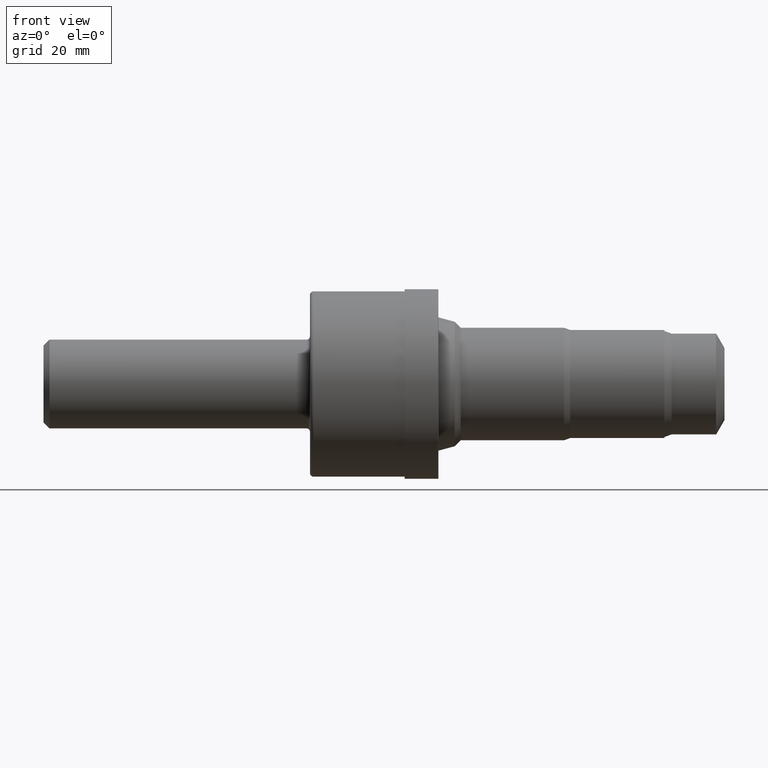
[diagram: clean part render]
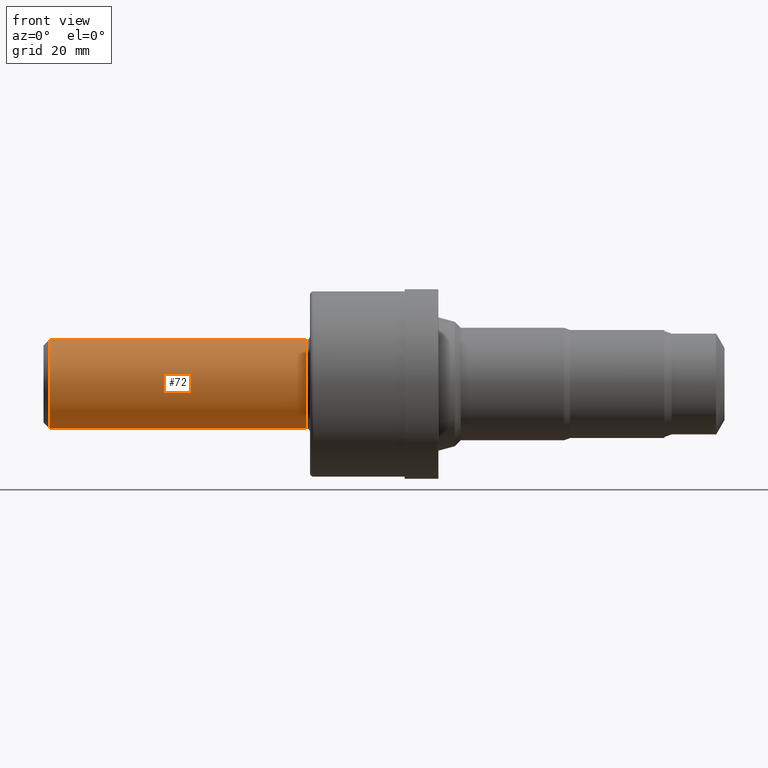
[diagram: same view with one face highlighted and labeled with its STEP entity id]
A machine part, front view. The second image highlights one B-rep face of the part: STEP entity #72.
In plain terms, the highlighted cylindrical surface (partial cylindrical patch) has radius 9.5212 mm, axis along (-1, -0, -0).
Its self-contained STEP definition (entity closure, byte-faithful):
#2 = CARTESIAN_POINT ( 'NONE',  ( 0.05000000000000000278, 4.590588526603856213E-17, -0.3748500000000000165 ) ) ;
#22 = DIRECTION ( 'NONE',  ( -1.000000000000000000, -0.0000000000000000000, -0.0000000000000000000 ) ) ;
#41 = DIRECTION ( 'NONE',  ( 0.0000000000000000000, 0.0000000000000000000, 1.000000000000000000 ) ) ;
#43 = ORIENTED_EDGE ( 'NONE', *, *, #716, .T. ) ;
#72 = ADVANCED_FACE ( 'NONE', ( #174 ), #325, .T. ) ;
#84 = DIRECTION ( 'NONE',  ( 0.0000000000000000000, 0.0000000000000000000, 1.000000000000000000 ) ) ;
#111 = CARTESIAN_POINT ( 'NONE',  ( 0.05000000000000000278, 0.0000000000000000000, 0.3748500000000000165 ) ) ;
#123 = EDGE_CURVE ( 'NONE', #231, #164, #522, .T. ) ;
#143 = AXIS2_PLACEMENT_3D ( 'NONE', #240, #225, #84 ) ;
#164 = VERTEX_POINT ( 'NONE', #111 ) ;
#174 = FACE_OUTER_BOUND ( 'NONE', #416, .T. ) ;
#178 = AXIS2_PLACEMENT_3D ( 'NONE', #930, #491, #41 ) ;
#205 = EDGE_CURVE ( 'NONE', #949, #934, #638, .T. ) ;
#225 = DIRECTION ( 'NONE',  ( -1.000000000000000000, -0.0000000000000000000, -0.0000000000000000000 ) ) ;
#231 = VERTEX_POINT ( 'NONE', #262 ) ;
#240 = CARTESIAN_POINT ( 'NONE',  ( 2.220000000000000195, 0.0000000000000000000, 0.0000000000000000000 ) ) ;
#242 = CARTESIAN_POINT ( 'NONE',  ( 0.0000000000000000000, 0.0000000000000000000, 0.0000000000000000000 ) ) ;
#243 = ORIENTED_EDGE ( 'NONE', *, *, #205, .F. ) ;
#262 = CARTESIAN_POINT ( 'NONE',  ( 2.220000000000000195, 0.0000000000000000000, 0.3748500000000006271 ) ) ;
#265 = EDGE_CURVE ( 'NONE', #934, #164, #365, .T. ) ;
#283 = ORIENTED_EDGE ( 'NONE', *, *, #123, .T. ) ;
#325 = CYLINDRICAL_SURFACE ( 'NONE', #922, 0.3748500000000003496 ) ;
#365 = CIRCLE ( 'NONE', #178, 0.3748500000000000165 ) ;
#416 = EDGE_LOOP ( 'NONE', ( #243, #43, #283, #648 ) ) ;
#434 = VECTOR ( 'NONE', #22, 39.37007874015748143 ) ;
#470 = CARTESIAN_POINT ( 'NONE',  ( 0.0000000000000000000, 0.0000000000000000000, 0.3748500000000003496 ) ) ;
#478 = VECTOR ( 'NONE', #696, 39.37007874015748143 ) ;
#491 = DIRECTION ( 'NONE',  ( -1.000000000000000000, -0.0000000000000000000, -0.0000000000000000000 ) ) ;
#522 = LINE ( 'NONE', #470, #478 ) ;
#595 = CARTESIAN_POINT ( 'NONE',  ( 2.220000000000000195, 4.774285546475963718E-17, -0.3748500000000006271 ) ) ;
#618 = CIRCLE ( 'NONE', #143, 0.3748500000000006271 ) ;
#638 = LINE ( 'NONE', #704, #434 ) ;
#648 = ORIENTED_EDGE ( 'NONE', *, *, #265, .F. ) ;
#689 = DIRECTION ( 'NONE',  ( 0.0000000000000000000, 0.0000000000000000000, 1.000000000000000000 ) ) ;
#696 = DIRECTION ( 'NONE',  ( -1.000000000000000000, -0.0000000000000000000, -0.0000000000000000000 ) ) ;
#704 = CARTESIAN_POINT ( 'NONE',  ( 0.0000000000000000000, 4.590588526603858678E-17, -0.3748500000000003496 ) ) ;
#716 = EDGE_CURVE ( 'NONE', #949, #231, #618, .T. ) ;
#830 = DIRECTION ( 'NONE',  ( -1.000000000000000000, -0.0000000000000000000, -0.0000000000000000000 ) ) ;
#922 = AXIS2_PLACEMENT_3D ( 'NONE', #242, #830, #689 ) ;
#930 = CARTESIAN_POINT ( 'NONE',  ( 0.05000000000000000278, 0.0000000000000000000, 0.0000000000000000000 ) ) ;
#934 = VERTEX_POINT ( 'NONE', #2 ) ;
#949 = VERTEX_POINT ( 'NONE', #595 ) ;